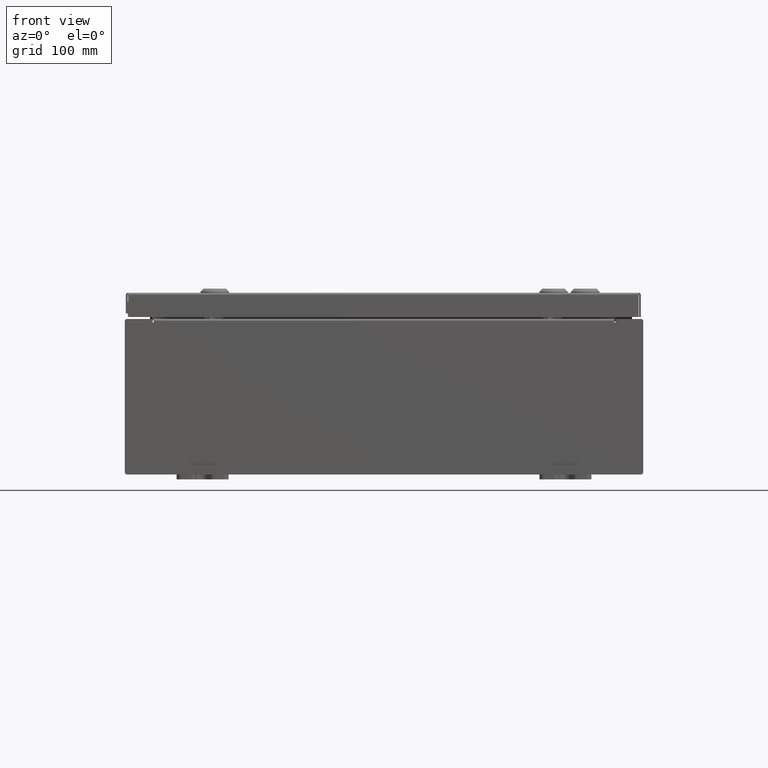
[diagram: clean part render]
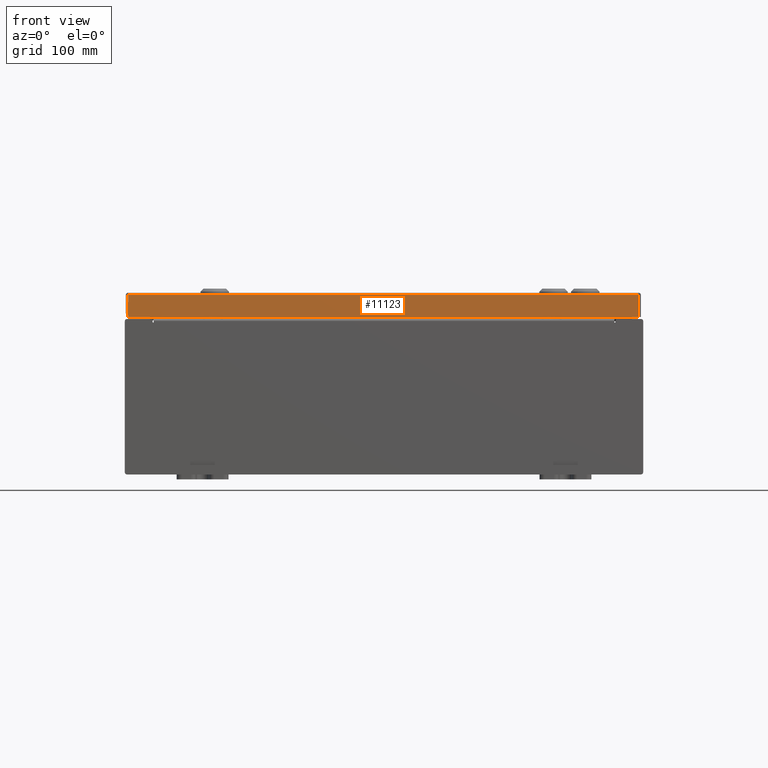
[diagram: same view with one face highlighted and labeled with its STEP entity id]
A machine part, front view. The second image highlights one B-rep face of the part: STEP entity #11123.
In plain terms, the highlighted planar face has unit normal (-0, 1, -0).
Its self-contained STEP definition (entity closure, byte-faithful):
#1851 = CARTESIAN_POINT ( 'NONE',  ( -9.848657864376269400, -7.937499999999999100, -0.08769999999999997200 ) ) ;
#2427 = CARTESIAN_POINT ( 'NONE',  ( 9.937500000000001800, -7.937499999999999100, -0.08769999999999997200 ) ) ;
#6720 = LINE ( 'NONE', #2427, #58471 ) ;
#9891 = EDGE_CURVE ( 'NONE', #29521, #31137, #23229, .T. ) ;
#11123 = ADVANCED_FACE ( 'NONE', ( #61157 ), #11775, .F. ) ;
#11775 = PLANE ( 'NONE',  #12751 ) ;
#11837 = VECTOR ( 'NONE', #58640, 39.37007874015748100 ) ;
#12410 = ORIENTED_EDGE ( 'NONE', *, *, #33970, .F. ) ;
#12751 = AXIS2_PLACEMENT_3D ( 'NONE', #40884, #16661, #50683 ) ;
#15186 = VERTEX_POINT ( 'NONE', #28398 ) ;
#16555 = ORIENTED_EDGE ( 'NONE', *, *, #17737, .F. ) ;
#16661 = DIRECTION ( 'NONE',  ( -4.699145404622725200E-031, 1.000000000000000000, -3.798629886902798700E-015 ) ) ;
#17737 = EDGE_CURVE ( 'NONE', #29521, #38439, #6720, .T. ) ;
#18091 = ORIENTED_EDGE ( 'NONE', *, *, #9891, .T. ) ;
#18680 = CARTESIAN_POINT ( 'NONE',  ( -9.848657864376269400, -7.937500000000002700, -0.9376999999999973100 ) ) ;
#21379 = CARTESIAN_POINT ( 'NONE',  ( 9.848657864376271200, -7.937499999999999100, -0.07469999999999972500 ) ) ;
#23229 = LINE ( 'NONE', #62119, #36179 ) ;
#28398 = CARTESIAN_POINT ( 'NONE',  ( 9.848657864376271200, -7.937500000000002700, -0.9376999999999997600 ) ) ;
#29274 = CARTESIAN_POINT ( 'NONE',  ( 9.937500000000001800, -7.937500000000002700, -0.9376999999999997600 ) ) ;
#29351 = EDGE_CURVE ( 'NONE', #38439, #15186, #40270, .T. ) ;
#29521 = VERTEX_POINT ( 'NONE', #1851 ) ;
#31137 = VERTEX_POINT ( 'NONE', #18680 ) ;
#31161 = DIRECTION ( 'NONE',  ( -0.0000000000000000000, -3.798629886902798700E-015, -1.000000000000000000 ) ) ;
#32972 = DIRECTION ( 'NONE',  ( 0.0000000000000000000, -3.798629886902798700E-015, -1.000000000000000000 ) ) ;
#33970 = EDGE_CURVE ( 'NONE', #15186, #31137, #40745, .T. ) ;
#36179 = VECTOR ( 'NONE', #32972, 39.37007874015748100 ) ;
#38439 = VERTEX_POINT ( 'NONE', #56952 ) ;
#40270 = LINE ( 'NONE', #21379, #51670 ) ;
#40745 = LINE ( 'NONE', #29274, #11837 ) ;
#40884 = CARTESIAN_POINT ( 'NONE',  ( 3.729946664919287400E-030, -7.937499999999999100, 3.041243838330254400E-014 ) ) ;
#46203 = DIRECTION ( 'NONE',  ( 1.000000000000000000, 4.699145404622725200E-031, -1.802587771145536000E-045 ) ) ;
#50195 = ORIENTED_EDGE ( 'NONE', *, *, #29351, .F. ) ;
#50683 = DIRECTION ( 'NONE',  ( 0.0000000000000000000, 3.798629886902798700E-015, 1.000000000000000000 ) ) ;
#51670 = VECTOR ( 'NONE', #31161, 39.37007874015748100 ) ;
#56952 = CARTESIAN_POINT ( 'NONE',  ( 9.848657864376273000, -7.937499999999999100, -0.08769999999999997200 ) ) ;
#58471 = VECTOR ( 'NONE', #46203, 39.37007874015748100 ) ;
#58640 = DIRECTION ( 'NONE',  ( -1.000000000000000000, 8.758115402030108600E-047, 1.237063242414006300E-016 ) ) ;
#60516 = EDGE_LOOP ( 'NONE', ( #16555, #18091, #12410, #50195 ) ) ;
#61157 = FACE_OUTER_BOUND ( 'NONE', #60516, .T. ) ;
#62119 = CARTESIAN_POINT ( 'NONE',  ( -9.848657864376265900, -7.937499999999999100, 3.041243838330254400E-014 ) ) ;